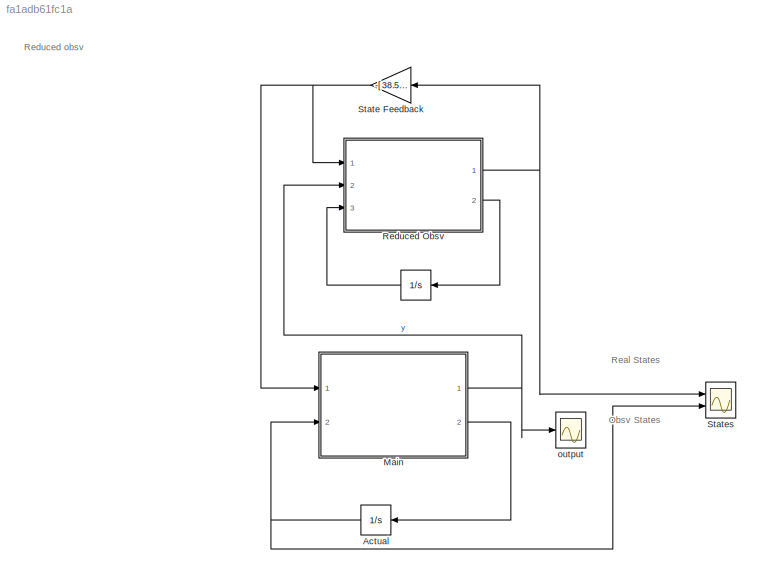
MODEL slx_fa1adb61fc1a
KIND model
CONFIG AbsTol = auto
CONFIG EnableMultiTasking = off
CONFIG FixedStep = auto
CONFIG MaxStep = auto
CONFIG MinStep = auto
CONFIG RelTol = 1e-3
CONFIG SampleTimeConstraint = Unconstrained
CONFIG Solver = VariableStepAuto
CONFIG SolverName = VariableStepAuto
CONFIG StartTime = 0.0
CONFIG StopTime = 15.0
BLOCK [Integrator]  
  InitialCondition = [0;0]
  NameLocation = top
  Ports = [1, 1]
BLOCK [Integrator] Actual
  InitialCondition = [0.1;1;0.5;-1]
  NameLocation = top
  Ports = [1, 1]
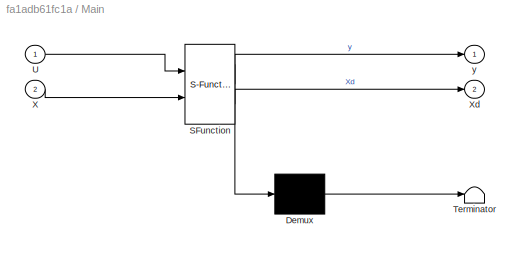
BLOCK [SubSystem] Main
  ErrorFcn = Stateflow.Translate.translate
  PermitHierarchicalResolution = ExplicitOnly
  Ports = [2, 2]
  RequestExecContextInheritance = off
  SFBlockType = MATLAB Function
  TreatAsAtomicUnit = on
BLOCK [Demux] Main/ Demux 
  Outputs = 1
  Ports = [1, 1]
BLOCK [S-Function] Main/ SFunction 
  EnableBusSupport = on
  FunctionName = sf_sfun
  PortCounts = [2 3]
  Ports = [2, 3]
  SFcnIsStateOwnerBlock = off
  SFunctionDeploymentMode = off
  Tag = Stateflow S-Function 1
BLOCK [Terminator] Main/ Terminator 
BLOCK [Inport] Main/U
BLOCK [Inport] Main/X
  Port = 2
BLOCK [Outport] Main/Xd
  Port = 2
BLOCK [Outport] Main/y
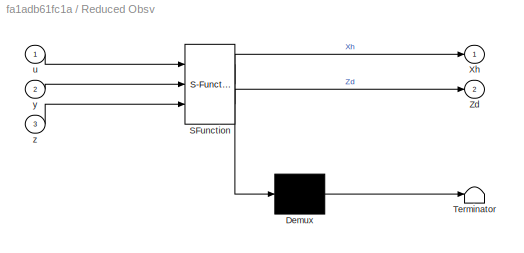
BLOCK [SubSystem] Reduced Obsv
  ErrorFcn = Stateflow.Translate.translate
  PermitHierarchicalResolution = ExplicitOnly
  Ports = [3, 2]
  RequestExecContextInheritance = off
  SFBlockType = MATLAB Function
  TreatAsAtomicUnit = on
BLOCK [Demux] Reduced Obsv/ Demux 
  Outputs = 1
  Ports = [1, 1]
BLOCK [S-Function] Reduced Obsv/ SFunction 
  EnableBusSupport = on
  FunctionName = sf_sfun
  PortCounts = [3 3]
  Ports = [3, 3]
  SFcnIsStateOwnerBlock = off
  SFunctionDeploymentMode = off
  Tag = Stateflow S-Function 3
BLOCK [Terminator] Reduced Obsv/ Terminator 
BLOCK [Outport] Reduced Obsv/Xh
BLOCK [Outport] Reduced Obsv/Zd
  Port = 2
BLOCK [Inport] Reduced Obsv/u
BLOCK [Inport] Reduced Obsv/y
  Port = 2
BLOCK [Inport] Reduced Obsv/z
  Port = 3
BLOCK [Gain] State Feedback
  Gain = -[ 38.5, 115.0, -55.3,  54.2; 38.1,  42.7,  30.3, -10.3]
  Multiplication = Matrix(K*u)
BLOCK [Scope] States
  Floating = off
  NumInputPorts = 2
  Ports = [2]
  ScopeSpecificationString = Simulink.scopes.TimeScopeBlockCfg('CurrentConfiguration', extmgr.ConfigurationSet(extmgr.Configuration('Core','General UI',true,'FigureColor',[1 1 1]),extmgr.Configuration('Core','Source UI',true),extmgr.Configuration('Sources','WiredSimulink',true,'DataLoggingSaveFormat','StructureWithTime','DataLoggingDecimation','1','DataLoggingDecimateData',true),extmgr.Configuration('Visuals','Time Domain',tr...<+2678ch>
BLOCK [Scope] output 
  Floating = off
  NumInputPorts = 1
  Ports = [1]
  ScopeSpecificationString = Simulink.scopes.TimeScopeBlockCfg('CurrentConfiguration', extmgr.ConfigurationSet(extmgr.Configuration('Core','General UI',true,'FigureColor',[1 1 1]),extmgr.Configuration('Core','Source UI',true),extmgr.Configuration('Sources','WiredSimulink',true,'DataLoggingSaveFormat','StructureWithTime','DataLoggingDecimation','1','DataLoggingDecimateData',true,'DataLoggingVariableName','ScopeData1'),extmgr.C...<+3194ch>
ANNOTATION (root): Obsv States
ANNOTATION (root): Real States
ANNOTATION (root): Reduced obsv
LINE  :1 -> Reduced Obsv:3
NET Actual:1 -> Main:2, States:2
NET Main:1 -> Reduced Obsv:2, output :1
LINE Main:2 -> Actual:1
NET Reduced Obsv:1 -> State Feedback:1, States:1
LINE Reduced Obsv:2 ->  :1
NET State Feedback:1 -> Main:1, Reduced Obsv:1
note: NET lines group one-source signal fan-out (src -> all destinations, sorted); 1:1 wires keep LINE
CHART Main states=1 transitions=1
  STATE_LABEL 'eML_blk_kernel()'
  STATE_LABEL 'SCRIPT:\nfunction [y, Xd]  = linear_plant(U, X)\n\nA = [ -0.0189,       0,  0.029,       0;\n       0, -0.0191,      0,  0.0349;\n       0,       0, -0.029,       0;\n       0,       0,      0, -0.0349];\n   \nB =[ 0.00306,      0;\n       0, 0.0035;\n       0, 0.0065;\n 0.00714,      0];\n\n\n C = [ 1.0,   0, 0, 0;\n   0, 1.0, 0, 0];\n\nXd = A*X + B*U; \ny = C*X'
CHART Reduced Obsv states=1 transitions=1
  STATE_LABEL 'eML_blk_kernel()'
  STATE_LABEL 'SCRIPT:\nfunction [Xh, Zd]= Obsv_R(u , y, z)\n% System main Matrices\nB = [ 0.00306,      0;\n       0, 0.0035;\n       0, 0.0065;\n 0.00714,      0];\n\n\n C = [ 1.0,   0, 0, 0;\n   0, 1.0, 0, 0];\n\n% Observer Matrices\nF = [ -0.4,     0;\n    0, -0.45];\n\nT = [ 2.62,     0, -0.205,     0;\n    0, -2.32,      0, 0.195];\n\n\nL = [ 1.0,    0;\n   0, -1.0];\n\nZd = F*z + T*B*u + L*y;\nXh = ([C;T]^-1)*[y;z];\nend'
CHART  states=0 transitions=0
CHART  states=0 transitions=0
